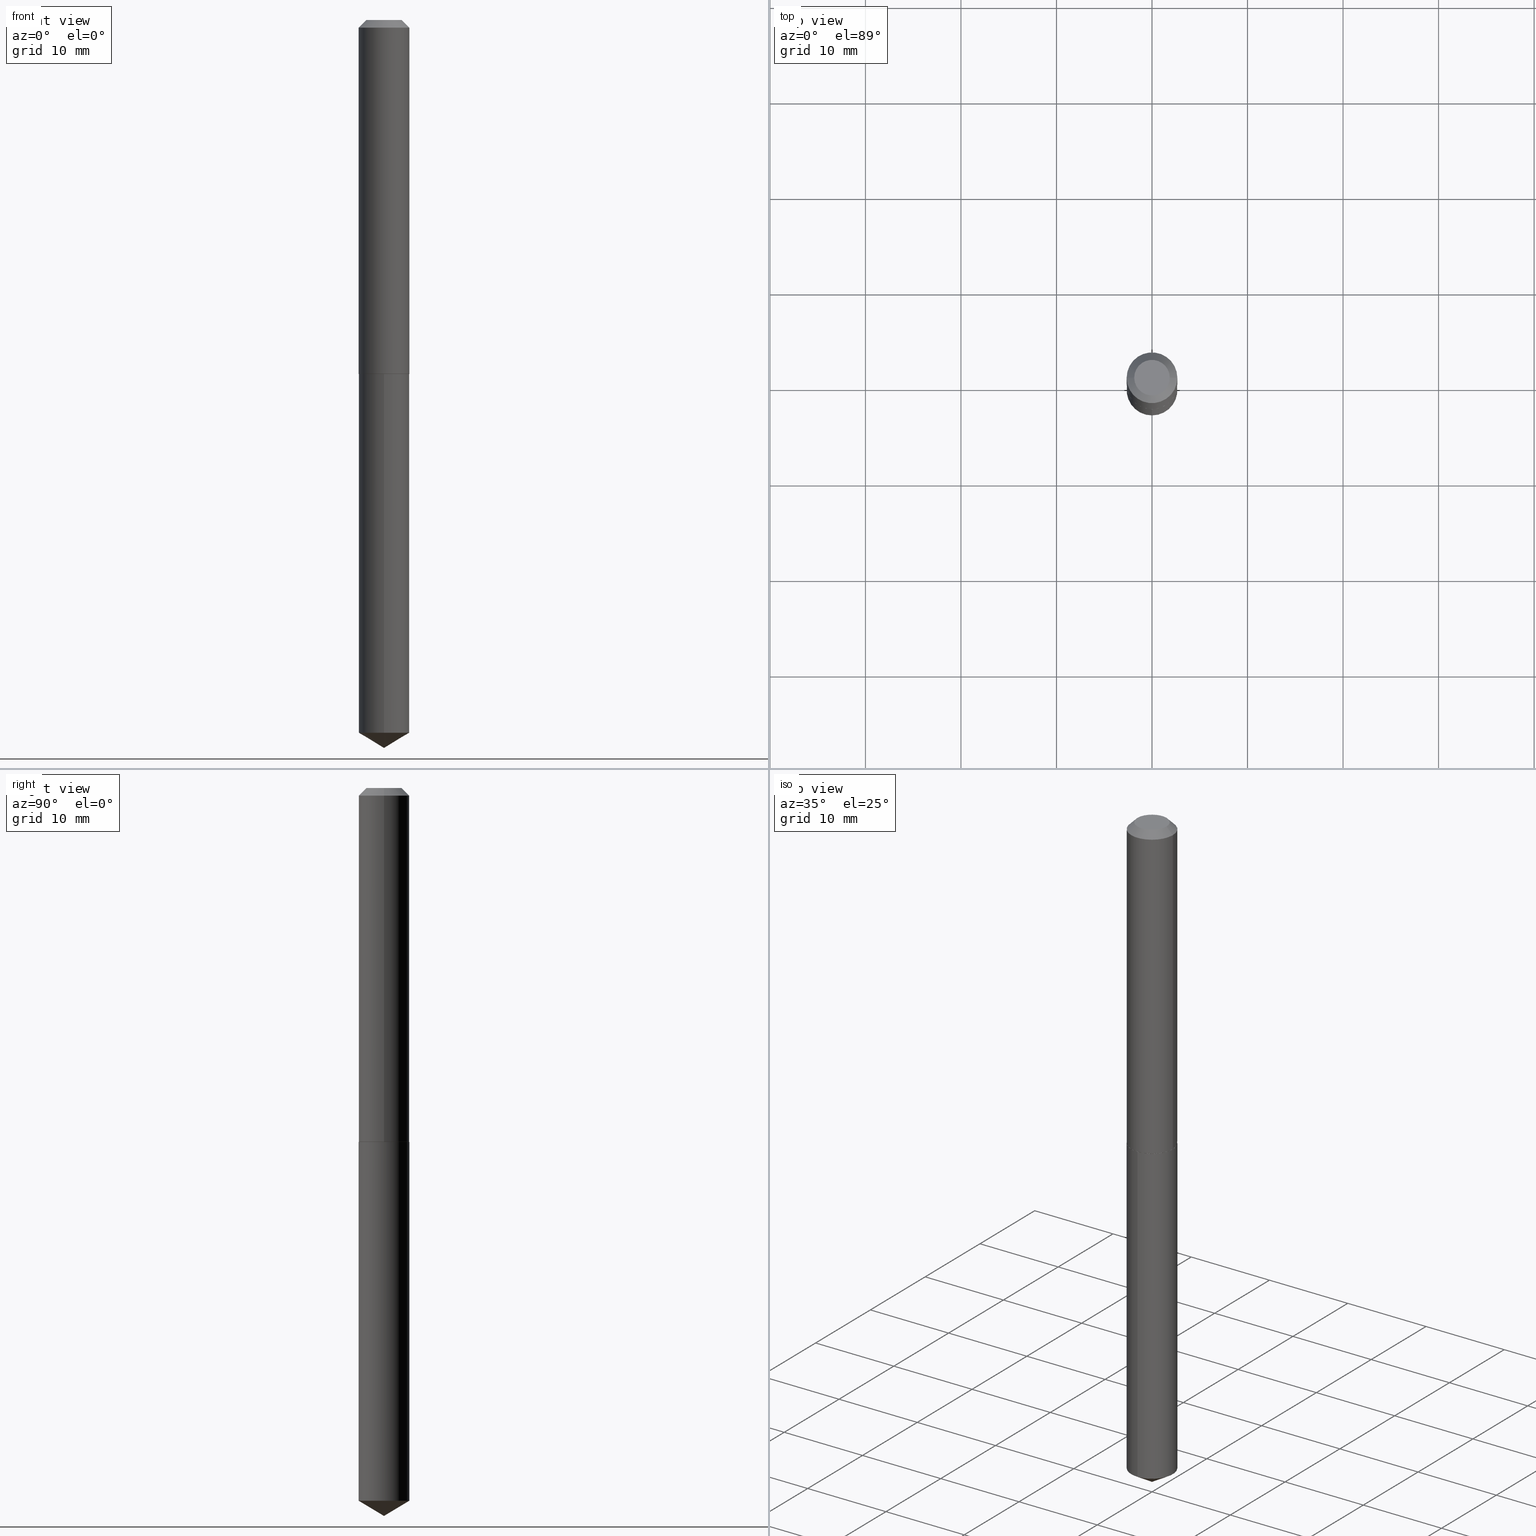
[diagram: canonical four-view strip — front | top / right | iso, engineering-drawing reading convention]
A machine part, canonical four-view strip (front | top / right | iso — engineering-drawing reading convention). The complete STEP part file that produces these views, byte-faithful:
ISO-10303-21;
HEADER;
FILE_DESCRIPTION (( 'STEP AP203' ),
    '1' );
FILE_NAME ('51004.STEP',
    '2024-04-22T18:11:56',
    ( '' ),
    ( '' ),
    'SwSTEP 2.0',
    'SolidWorks 2023',
    '' );
FILE_SCHEMA (( 'CONFIG_CONTROL_DESIGN' ));
ENDSEC;

DATA;
#1 = CARTESIAN_POINT ( 'NONE',  ( 3.567938988224114792E-29, -5.094071273372150151E-15, -1.459000000000000297 ) ) ;
#2 = PERSON_AND_ORGANIZATION_ROLE ( 'creator' ) ;
#3 = ORIENTED_EDGE ( 'NONE', *, *, #196, .F. ) ;
#4 = CARTESIAN_POINT ( 'NONE',  ( 7.642090019328598283E-31, -1.091087918388489651E-16, -0.03125000000000019429 ) ) ;
#5 = AXIS2_PLACEMENT_3D ( 'NONE', #40, #342, #97 ) ;
#6 = EDGE_CURVE ( 'NONE', #179, #195, #211, .T. ) ;
#7 = DIRECTION ( 'NONE',  ( -2.445468806185136597E-29, 3.491481338843145583E-15, 1.000000000000000000 ) ) ;
#8 = LENGTH_MEASURE_WITH_UNIT ( LENGTH_MEASURE( 0.02539999999999999897 ), #284 );
#9 = ORIENTED_EDGE ( 'NONE', *, *, #300, .F. ) ;
#10 = DIRECTION ( 'NONE',  ( -1.000000000000000000, 6.982962677686266711E-15, 0.000000000000000000 ) ) ;
#11 = DIRECTION ( 'NONE',  ( 0.000000000000000000, 0.000000000000000000, 1.000000000000000000 ) ) ;
#12 = VECTOR ( 'NONE', #35, 39.37007874015748143 ) ;
#13 = ORIENTED_EDGE ( 'NONE', *, *, #194, .T. ) ;
#14 = EDGE_LOOP ( 'NONE', ( #206, #106, #159, #32 ) ) ;
#15 = CALENDAR_DATE ( 2024, 22, 4 ) ;
#16 = ORGANIZATION ( 'UNSPECIFIED', 'UNSPECIFIED', '' ) ;
#17 = CARTESIAN_POINT ( 'NONE',  ( 3.567938988224114792E-29, -5.094071273372150151E-15, -1.459000000000000297 ) ) ;
#18 = ADVANCED_FACE ( 'NONE', ( #81 ), #163, .T. ) ;
#19 = DIRECTION ( 'NONE',  ( -2.441776610814590740E-29, 3.496768772760477182E-15, 1.000000000000000000 ) ) ;
#20 = ORIENTED_EDGE ( 'NONE', *, *, #6, .F. ) ;
#21 = CIRCLE ( 'NONE', #311, 0.1045000000000001622 ) ;
#22 = DIRECTION ( 'NONE',  ( -2.438088387897960049E-29, 3.491481338843145188E-15, 1.000000000000000000 ) ) ;
#23 = EDGE_CURVE ( 'NONE', #129, #108, #118, .T. ) ;
#24 = DIRECTION ( 'NONE',  ( -5.985567269335967312E-15, -0.8571673007021139989, 0.5150380749100511579 ) ) ;
#25 = PERSON_AND_ORGANIZATION_ROLE ( 'creator' ) ;
#26 = DIRECTION ( 'NONE',  ( -2.445468806185136877E-29, 3.491481338843145188E-15, 1.000000000000000000 ) ) ;
#27 = DIRECTION ( 'NONE',  ( 0.7071067811864147901, -2.468850131080866299E-15, 0.7071067811866802444 ) ) ;
#28 = VECTOR ( 'NONE', #184, 39.37007874015748143 ) ;
#29 = CARTESIAN_POINT ( 'NONE',  ( 7.325329832443772782E-29, -1.049030631828143155E-14, -3.000000000000000444 ) ) ;
#30 = ADVANCED_FACE ( 'NONE', ( #268 ), #87, .F. ) ;
#31 = DIRECTION ( 'NONE',  ( -2.445468806185136597E-29, 3.491481338843145583E-15, 1.000000000000000000 ) ) ;
#32 = ORIENTED_EDGE ( 'NONE', *, *, #34, .F. ) ;
#33 = CARTESIAN_POINT ( 'NONE',  ( 0.1045000000000000789, -7.297195998182153130E-16, 5.095604730706756323E-30 ) ) ;
#34 = EDGE_CURVE ( 'NONE', #228, #256, #178, .T. ) ;
#35 = DIRECTION ( 'NONE',  ( 0.7071067811865453523, -7.319954787623248157E-15, -0.7071067811865496822 ) ) ;
#36 = DIRECTION ( 'NONE',  ( -2.445468806185136597E-29, 3.491481338843145583E-15, 1.000000000000000000 ) ) ;
#37 = AXIS2_PLACEMENT_3D ( 'NONE', #17, #116, #85 ) ;
#38 = DIRECTION ( 'NONE',  ( -6.982962677686264344E-15, -1.000000000000000000, 3.468864327941540177E-15 ) ) ;
#39 = VERTEX_POINT ( 'NONE', #78 ) ;
#40 = CARTESIAN_POINT ( 'NONE',  ( 7.177397751572739020E-29, -1.026303006933405214E-14, -2.937210065311621321 ) ) ;
#41 = ADVANCED_FACE ( 'NONE', ( #361 ), #333, .T. ) ;
#42 = ORIENTED_EDGE ( 'NONE', *, *, #119, .T. ) ;
#43 = DIRECTION ( 'NONE',  ( 1.000000000000000000, 0.000000000000000000, 0.000000000000000000 ) ) ;
#44 = AXIS2_PLACEMENT_3D ( 'NONE', #200, #242, #366 ) ;
#45 = DATE_AND_TIME ( #15, #328 ) ;
#46 = ORIENTED_EDGE ( 'NONE', *, *, #317, .F. ) ;
#47 = APPROVAL_DATE_TIME ( #271, #269 ) ;
#48 = EDGE_LOOP ( 'NONE', ( #3, #293, #313, #46 ) ) ;
#49 = APPROVAL_PERSON_ORGANIZATION ( #235, #269, #267 ) ;
#50 = ORIENTED_EDGE ( 'NONE', *, *, #123, .F. ) ;
#51 = ADVANCED_FACE ( 'NONE', ( #332 ), #324, .F. ) ;
#52 = EDGE_LOOP ( 'NONE', ( #296, #384, #42, #142 ) ) ;
#53 = COORDINATED_UNIVERSAL_TIME_OFFSET ( 5, 0, .BEHIND. ) ;
#54 = LINE ( 'NONE', #29, #144 ) ;
#55 = FACE_OUTER_BOUND ( 'NONE', #14, .T. ) ;
#56 = ORIENTED_EDGE ( 'NONE', *, *, #277, .F. ) ;
#57 = LINE ( 'NONE', #336, #212 ) ;
#58 = EDGE_LOOP ( 'NONE', ( #288, #379 ) ) ;
#59 = CARTESIAN_POINT ( 'NONE',  ( -8.880222068815590647E-28, 1.271854699675077977E-13, 36.37007874015748143 ) ) ;
#60 = EDGE_CURVE ( 'NONE', #256, #228, #218, .T. ) ;
#61 = LINE ( 'NONE', #149, #28 ) ;
#62 = AXIS2_PLACEMENT_3D ( 'NONE', #170, #359, #386 ) ;
#63 = AXIS2_PLACEMENT_3D ( 'NONE', #274, #19, #223 ) ;
#64 = CARTESIAN_POINT ( 'NONE',  ( -0.1045000000000001622, -4.349808373833422899E-15, -1.458500000000000352 ) ) ;
#65 = DIRECTION ( 'NONE',  ( 1.000000000000000000, -6.982962677686265922E-15, 4.876176775795935232E-29 ) ) ;
#66 = EDGE_CURVE ( 'NONE', #108, #39, #245, .T. ) ;
#67 = CARTESIAN_POINT ( 'NONE',  ( 7.325329832443772782E-29, -1.049030631828143155E-14, -3.000000000000000444 ) ) ;
#68 = VECTOR ( 'NONE', #26, 39.37007874015748143 ) ;
#69 = PRODUCT_DEFINITION_FORMATION_WITH_SPECIFIED_SOURCE ( 'ANY', '', #146, .NOT_KNOWN. ) ;
#70 = ORIENTED_EDGE ( 'NONE', *, *, #100, .F. ) ;
#71 = PERSON_AND_ORGANIZATION ( #373, #16 ) ;
#72 = ADVANCED_FACE ( 'NONE', ( #148 ), #89, .T. ) ;
#73 = COORDINATED_UNIVERSAL_TIME_OFFSET ( 5, 0, .BEHIND. ) ;
#74 = EDGE_LOOP ( 'NONE', ( #303, #20, #103, #321 ) ) ;
#75 = AXIS2_PLACEMENT_3D ( 'NONE', #306, #257, #93 ) ;
#76 = CC_DESIGN_PERSON_AND_ORGANIZATION_ASSIGNMENT ( #330, #2, ( #69 ) ) ;
#77 = DATE_TIME_ROLE ( 'classification_date' ) ;
#78 = CARTESIAN_POINT ( 'NONE',  ( 0.1045000000000001622, -5.822045132520943960E-15, -1.458500000000000352 ) ) ;
#79 = VECTOR ( 'NONE', #188, 39.37007874015748143 ) ;
#80 = SECURITY_CLASSIFICATION ( '', '', #197 ) ;
#81 = FACE_OUTER_BOUND ( 'NONE', #48, .T. ) ;
#82 = DIRECTION ( 'NONE',  ( 1.000000000000000000, -6.982962677686261977E-15, 0.000000000000000000 ) ) ;
#83 = CC_DESIGN_PERSON_AND_ORGANIZATION_ASSIGNMENT ( #71, #260, ( #146 ) ) ;
#84 = DIRECTION ( 'NONE',  ( -2.441776610814590740E-29, 3.496768772760476787E-15, 1.000000000000000000 ) ) ;
#85 = DIRECTION ( 'NONE',  ( -6.982962677686266711E-15, -1.000000000000000000, 2.614208606377285850E-15 ) ) ;
#86 = DIRECTION ( 'NONE',  ( -2.445468806185136597E-29, 3.491481338843145583E-15, 1.000000000000000000 ) ) ;
#87 = PLANE ( 'NONE',  #234 ) ;
#88 = DIRECTION ( 'NONE',  ( -2.445468806185136597E-29, 3.491481338843145583E-15, 1.000000000000000000 ) ) ;
#89 = CONICAL_SURFACE ( 'NONE', #63, 65.52281426576945478, 1.029744258676661417 ) ;
#90 = FACE_OUTER_BOUND ( 'NONE', #95, .T. ) ;
#91 = DESIGN_CONTEXT ( 'detailed design', #343, 'design' ) ;
#92 = DIRECTION ( 'NONE',  ( -6.982962677686266711E-15, -1.000000000000000000, 5.228417212754571700E-15 ) ) ;
#93 = DIRECTION ( 'NONE',  ( 1.000000000000000000, -6.982962677686261977E-15, 0.000000000000000000 ) ) ;
#94 = APPLICATION_CONTEXT ( 'configuration controlled 3d designs of mechanical parts and assemblies' ) ;
#95 = EDGE_LOOP ( 'NONE', ( #168, #285, #383 ) ) ;
#96 = DIRECTION ( 'NONE',  ( -2.441776610814590740E-29, 3.496768772760477182E-15, 1.000000000000000000 ) ) ;
#97 = DIRECTION ( 'NONE',  ( -6.982962677686266711E-15, -1.000000000000000000, 5.228417212754571700E-15 ) ) ;
#98 = EDGE_LOOP ( 'NONE', ( #135, #329, #161, #70 ) ) ;
#99 = CC_DESIGN_APPROVAL ( #191, ( #80 ) ) ;
#100 = EDGE_CURVE ( 'NONE', #179, #262, #344, .T. ) ;
#101 = ORIENTED_EDGE ( 'NONE', *, *, #290, .T. ) ;
#102 = PERSON_AND_ORGANIZATION ( #373, #16 ) ;
#103 = ORIENTED_EDGE ( 'NONE', *, *, #100, .T. ) ;
#104 = ORIENTED_EDGE ( 'NONE', *, *, #314, .F. ) ;
#105 = AXIS2_PLACEMENT_3D ( 'NONE', #241, #213, #272 ) ;
#106 = ORIENTED_EDGE ( 'NONE', *, *, #314, .T. ) ;
#107 = EDGE_LOOP ( 'NONE', ( #236, #318 ) ) ;
#108 = VERTEX_POINT ( 'NONE', #208 ) ;
#109 = CC_DESIGN_PERSON_AND_ORGANIZATION_ASSIGNMENT ( #232, #25, ( #244 ) ) ;
#110 = AXIS2_PLACEMENT_3D ( 'NONE', #59, #96, #38 ) ;
#111 = ORIENTED_EDGE ( 'NONE', *, *, #60, .F. ) ;
#112 = CALENDAR_DATE ( 2024, 22, 4 ) ;
#113 = DIRECTION ( 'NONE',  ( -6.982962677686266711E-15, -1.000000000000000000, 2.614208606377285850E-15 ) ) ;
#114 = PERSON_AND_ORGANIZATION_ROLE ( 'classification_officer' ) ;
#115 = DIRECTION ( 'NONE',  ( 1.000000000000000000, -6.982962677686265922E-15, 4.876176775795935232E-29 ) ) ;
#116 = DIRECTION ( 'NONE',  ( -2.441776610814590740E-29, 3.496768772760477182E-15, 1.000000000000000000 ) ) ;
#117 = CARTESIAN_POINT ( 'NONE',  ( -0.07324999999999998179, 5.660564120599423523E-16, -2.449293598332392884E-19 ) ) ;
#118 = CIRCLE ( 'NONE', #340, 0.1040000000000001756 ) ;
#119 = EDGE_CURVE ( 'NONE', #39, #220, #308, .T. ) ;
#120 = CIRCLE ( 'NONE', #75, 0.1045000000000001622 ) ;
#121 = AXIS2_PLACEMENT_3D ( 'NONE', #377, #11, #43 ) ;
#122 = CYLINDRICAL_SURFACE ( 'NONE', #105, 0.1044999999999999818 ) ;
#123 = EDGE_CURVE ( 'NONE', #136, #256, #57, .T. ) ;
#124 = APPROVAL_DATE_TIME ( #334, #191 ) ;
#125 = PRODUCT_RELATED_PRODUCT_CATEGORY ( 'detail', '', ( #146 ) ) ;
#126 = DIRECTION ( 'NONE',  ( 2.445468806185136597E-29, -3.491481338843145583E-15, -1.000000000000000000 ) ) ;
#127 = CONICAL_SURFACE ( 'NONE', #352, 0.1044999999999999818, 0.7853981633974452814 ) ;
#128 = DIRECTION ( 'NONE',  ( 6.090539988449805257E-15, 0.8571673007021175517, 0.5150380749100452737 ) ) ;
#129 = VERTEX_POINT ( 'NONE', #155 ) ;
#130 = CARTESIAN_POINT ( 'NONE',  ( 7.425171588693764498E-16, 0.1044999999999897400, -2.937210065311621765 ) ) ;
#131 = EDGE_CURVE ( 'NONE', #108, #129, #389, .T. ) ;
#132 = EDGE_LOOP ( 'NONE', ( #9, #348, #104 ) ) ;
#133 = MECHANICAL_CONTEXT ( 'NONE', #94, 'mechanical' ) ;
#134 = CIRCLE ( 'NONE', #250, 0.1044999999999999818 ) ;
#135 = ORIENTED_EDGE ( 'NONE', *, *, #194, .F. ) ;
#136 = VERTEX_POINT ( 'NONE', #177 ) ;
#137 = CONICAL_SURFACE ( 'NONE', #110, 65.52281426576945478, 1.029744258676661417 ) ;
#138 = APPROVAL_PERSON_ORGANIZATION ( #141, #191, #325 ) ;
#139 = APPROVAL_DATE_TIME ( #45, #280 ) ;
#140 = CARTESIAN_POINT ( 'NONE',  ( 8.917412213501928532E-30, -8.926538795253070044E-15, -1.459000000000000519 ) ) ;
#141 = PERSON_AND_ORGANIZATION ( #373, #16 ) ;
#142 = ORIENTED_EDGE ( 'NONE', *, *, #341, .F. ) ;
#143 = EDGE_LOOP ( 'NONE', ( #266, #101, #56, #233 ) ) ;
#144 = VECTOR ( 'NONE', #24, 39.37007874015748854 ) ;
#145 = DIRECTION ( 'NONE',  ( -2.445468806185136597E-29, 3.491481338843145583E-15, 1.000000000000000000 ) ) ;
#146 = PRODUCT ( '51004', '51004', '', ( #133 ) ) ;
#147 = LINE ( 'NONE', #187, #12 ) ;
#148 = FACE_OUTER_BOUND ( 'NONE', #132, .T. ) ;
#149 = CARTESIAN_POINT ( 'NONE',  ( -0.1045000000000001622, -4.349808373833422899E-15, -1.458500000000000352 ) ) ;
#150 = EDGE_CURVE ( 'NONE', #195, #220, #147, .T. ) ;
#151 = DIRECTION ( 'NONE',  ( -2.445468806185136597E-29, 3.491481338843145583E-15, 1.000000000000000000 ) ) ;
#152 = ADVANCED_FACE ( 'NONE', ( #55 ), #122, .T. ) ;
#153 = CARTESIAN_POINT ( 'NONE',  ( 7.425171588693401622E-16, 0.1044999999999949025, -1.459000000000000519 ) ) ;
#154 = PRODUCT_DEFINITION_SHAPE ( 'NONE', 'NONE',  #244 ) ;
#155 = CARTESIAN_POINT ( 'NONE',  ( -0.1040000000000001756, -4.352457601007534889E-15, -1.459000000000000519 ) ) ;
#156 = DIRECTION ( 'NONE',  ( 1.000000000000000000, -6.982962677686266711E-15, 0.000000000000000000 ) ) ;
#157 = CIRCLE ( 'NONE', #5, 0.1044999999999999818 ) ;
#158 = FACE_OUTER_BOUND ( 'NONE', #74, .T. ) ;
#159 = ORIENTED_EDGE ( 'NONE', *, *, #123, .T. ) ;
#160 = DIRECTION ( 'NONE',  ( 1.000000000000000000, -6.982962677686261977E-15, 0.000000000000000000 ) ) ;
#161 = ORIENTED_EDGE ( 'NONE', *, *, #277, .T. ) ;
#162 =( CONVERSION_BASED_UNIT ( 'INCH', #8 ) LENGTH_UNIT ( ) NAMED_UNIT ( #353 ) );
#163 = CONICAL_SURFACE ( 'NONE', #388, 0.1045000000000001622, 0.7853981633972606513 ) ;
#164 = EDGE_LOOP ( 'NONE', ( #299, #13 ) ) ;
#165 = COORDINATED_UNIVERSAL_TIME_OFFSET ( 5, 0, .BEHIND. ) ;
#166 = VECTOR ( 'NONE', #363, 39.37007874015748143 ) ;
#167 = ADVANCED_FACE ( 'NONE', ( #251 ), #243, .F. ) ;
#168 = ORIENTED_EDGE ( 'NONE', *, *, #216, .F. ) ;
#169 = PERSON_AND_ORGANIZATION_ROLE ( 'design_supplier' ) ;
#170 = CARTESIAN_POINT ( 'NONE',  ( 5.989671091818676413E-48, -8.551662891793981134E-34, -2.449293598294715917E-19 ) ) ;
#171 = COORDINATED_UNIVERSAL_TIME_OFFSET ( 5, 0, .BEHIND. ) ;
#172 = CC_DESIGN_SECURITY_CLASSIFICATION ( #80, ( #69 ) ) ;
#173 = DIRECTION ( 'NONE',  ( -2.441776610814590740E-29, 3.496768772760477182E-15, 1.000000000000000000 ) ) ;
#174 = ADVANCED_FACE ( 'NONE', ( #304 ), #369, .T. ) ;
#175 = DIRECTION ( 'NONE',  ( 1.000000000000000000, -6.982962677686265133E-15, 0.000000000000000000 ) ) ;
#176 = DIRECTION ( 'NONE',  ( 1.000000000000000000, -6.982962677686261977E-15, 0.000000000000000000 ) ) ;
#177 = CARTESIAN_POINT ( 'NONE',  ( -7.297195998181429350E-16, -0.1045000000000102514, -2.937210065311620433 ) ) ;
#178 = CIRCLE ( 'NONE', #44, 0.1044999999999999818 ) ;
#179 = VERTEX_POINT ( 'NONE', #117 ) ;
#180 = DIRECTION ( 'NONE',  ( 6.982962677686265922E-15, 1.000000000000000000, -3.496768772760476787E-15 ) ) ;
#181 = DATE_TIME_ROLE ( 'creation_date' ) ;
#182 = SHAPE_DEFINITION_REPRESENTATION ( #154, #183 ) ;
#183 = ADVANCED_BREP_SHAPE_REPRESENTATION ( '51004', ( #190, #323, #121 ), #382 ) ;
#184 = DIRECTION ( 'NONE',  ( -0.7071067811864147901, 7.493145998869874533E-15, 0.7071067811866802444 ) ) ;
#185 = CLOSED_SHELL ( 'NONE', ( #247, #174, #230, #51, #18, #294, #331, #30 ) ) ;
#186 = AXIS2_PLACEMENT_3D ( 'NONE', #140, #22, #270 ) ;
#187 = CARTESIAN_POINT ( 'NONE',  ( 0.1044999999999999818, -8.260308326059739785E-16, -0.03125000000000019429 ) ) ;
#188 = DIRECTION ( 'NONE',  ( -2.445468806185136877E-29, 3.491481338843145188E-15, 1.000000000000000000 ) ) ;
#189 = LOCAL_TIME ( 14, 11, 56.00000000000000000, #171 ) ;
#190 = MANIFOLD_SOLID_BREP ( 'Body-Move/Copy2[1]', #239 ) ;
#191 = APPROVAL ( #199, 'UNSPECIFIED' ) ;
#192 = ORIENTED_EDGE ( 'NONE', *, *, #322, .T. ) ;
#193 = APPLICATION_PROTOCOL_DEFINITION ( 'international standard', 'config_control_design', 1994, #343 ) ;
#194 = EDGE_CURVE ( 'NONE', #195, #179, #381, .T. ) ;
#195 = VERTEX_POINT ( 'NONE', #246 ) ;
#196 = EDGE_CURVE ( 'NONE', #129, #292, #61, .T. ) ;
#197 = SECURITY_CLASSIFICATION_LEVEL ( 'unclassified' ) ;
#198 = CARTESIAN_POINT ( 'NONE',  ( 2.994835545909338206E-48, -4.275831445896990567E-34, -1.224646799147357958E-19 ) ) ;
#199 = APPROVAL_STATUS ( 'not_yet_approved' ) ;
#200 = CARTESIAN_POINT ( 'NONE',  ( 3.567938988224114792E-29, -5.094071273372150151E-15, -1.459000000000000297 ) ) ;
#201 = CALENDAR_DATE ( 2024, 22, 4 ) ;
#202 = VECTOR ( 'NONE', #27, 39.37007874015748143 ) ;
#203 = DIRECTION ( 'NONE',  ( -2.445468806185136597E-29, 3.491481338843145583E-15, 1.000000000000000000 ) ) ;
#204 = COORDINATED_UNIVERSAL_TIME_OFFSET ( 5, 0, .BEHIND. ) ;
#205 = CARTESIAN_POINT ( 'NONE',  ( -7.297195998181791240E-16, -0.1045000000000050749, -1.458999999999999853 ) ) ;
#206 = ORIENTED_EDGE ( 'NONE', *, *, #370, .F. ) ;
#207 = CARTESIAN_POINT ( 'NONE',  ( 0.1044999999999999818, -8.388283916570637234E-16, -0.03125000000000019429 ) ) ;
#208 = CARTESIAN_POINT ( 'NONE',  ( 0.1040000000000001756, -5.820299391851524035E-15, -1.459000000000000519 ) ) ;
#209 = CARTESIAN_POINT ( 'NONE',  ( 0.1045000000000001622, -5.822045132520943960E-15, -1.458500000000000352 ) ) ;
#210 = FACE_OUTER_BOUND ( 'NONE', #98, .T. ) ;
#211 = CIRCLE ( 'NONE', #62, 0.07324999999999998179 ) ;
#212 = VECTOR ( 'NONE', #84, 39.37007874015748143 ) ;
#213 = DIRECTION ( 'NONE',  ( -2.441776610814590740E-29, 3.496768772760477182E-15, 1.000000000000000000 ) ) ;
#214 = CC_DESIGN_DATE_AND_TIME_ASSIGNMENT ( #356, #77, ( #80 ) ) ;
#215 = CARTESIAN_POINT ( 'NONE',  ( 0.000000000000000000, 0.000000000000000000, 0.000000000000000000 ) ) ;
#216 = EDGE_CURVE ( 'NONE', #354, #136, #54, .T. ) ;
#217 = CARTESIAN_POINT ( 'NONE',  ( 0.000000000000000000, 0.000000000000000000, 0.000000000000000000 ) ) ;
#218 = CIRCLE ( 'NONE', #305, 0.1044999999999999818 ) ;
#219 = CARTESIAN_POINT ( 'NONE',  ( 7.336198132272364143E-29, -1.047487758611065775E-14, -3.000000000000000444 ) ) ;
#220 = VERTEX_POINT ( 'NONE', #207 ) ;
#221 = CARTESIAN_POINT ( 'NONE',  ( -0.1044999999999999818, 6.206108079793658179E-16, -0.03125000000000019429 ) ) ;
#222 = CARTESIAN_POINT ( 'NONE',  ( 3.566716253821021991E-29, -5.092325532702728647E-15, -1.458500000000000352 ) ) ;
#223 = DIRECTION ( 'NONE',  ( -6.982962677686264344E-15, -1.000000000000000000, 3.468864327941540177E-15 ) ) ;
#224 = DIRECTION ( 'NONE',  ( -2.445468806185136597E-29, 3.491481338843145583E-15, 1.000000000000000000 ) ) ;
#225 = VECTOR ( 'NONE', #279, 39.37007874015748143 ) ;
#226 = APPROVAL_PERSON_ORGANIZATION ( #102, #280, #351 ) ;
#227 = CARTESIAN_POINT ( 'NONE',  ( 7.642090019328598283E-31, -1.091087918388489651E-16, -0.03125000000000019429 ) ) ;
#228 = VERTEX_POINT ( 'NONE', #360 ) ;
#229 = APPROVAL_STATUS ( 'not_yet_approved' ) ;
#230 = ADVANCED_FACE ( 'NONE', ( #275 ), #276, .T. ) ;
#231 = ORIENTED_EDGE ( 'NONE', *, *, #370, .T. ) ;
#232 = PERSON_AND_ORGANIZATION ( #373, #16 ) ;
#233 = ORIENTED_EDGE ( 'NONE', *, *, #119, .F. ) ;
#234 = AXIS2_PLACEMENT_3D ( 'NONE', #198, #301, #390 ) ;
#235 = PERSON_AND_ORGANIZATION ( #373, #16 ) ;
#236 = ORIENTED_EDGE ( 'NONE', *, *, #60, .T. ) ;
#237 = PERSON_AND_ORGANIZATION ( #373, #16 ) ;
#238 = ORIENTED_EDGE ( 'NONE', *, *, #196, .T. ) ;
#239 = CLOSED_SHELL ( 'NONE', ( #41, #261, #72, #152, #167 ) ) ;
#240 = AXIS2_PLACEMENT_3D ( 'NONE', #217, #36, #65 ) ;
#241 = CARTESIAN_POINT ( 'NONE',  ( 3.567938988224114792E-29, -5.094071273372150151E-15, -1.459000000000000297 ) ) ;
#242 = DIRECTION ( 'NONE',  ( -2.441776610814590740E-29, 3.496768772760477182E-15, 1.000000000000000000 ) ) ;
#243 = PLANE ( 'NONE',  #264 ) ;
#244 = PRODUCT_DEFINITION ( 'UNKNOWN', '', #69, #91 ) ;
#245 = LINE ( 'NONE', #209, #202 ) ;
#246 = CARTESIAN_POINT ( 'NONE',  ( 0.07324999999999998179, -6.642811554713692475E-16, -2.449293598253609831E-19 ) ) ;
#247 = ADVANCED_FACE ( 'NONE', ( #210 ), #374, .T. ) ;
#248 = ORIENTED_EDGE ( 'NONE', *, *, #66, .F. ) ;
#249 = DIRECTION ( 'NONE',  ( -1.000000000000000000, 6.982962677686266711E-15, 0.000000000000000000 ) ) ;
#250 = AXIS2_PLACEMENT_3D ( 'NONE', #349, #345, #92 ) ;
#251 = FACE_OUTER_BOUND ( 'NONE', #107, .T. ) ;
#252 =( NAMED_UNIT ( * ) SI_UNIT ( $, .STERADIAN. ) SOLID_ANGLE_UNIT ( ) );
#253 = UNCERTAINTY_MEASURE_WITH_UNIT (LENGTH_MEASURE( 1.000000000000000082E-05 ), #162, 'distance_accuracy_value', 'NONE');
#254 = VECTOR ( 'NONE', #128, 39.37007874015748143 ) ;
#255 = DIRECTION ( 'NONE',  ( -2.445468806185136597E-29, 3.491481338843145583E-15, 1.000000000000000000 ) ) ;
#256 = VERTEX_POINT ( 'NONE', #205 ) ;
#257 = DIRECTION ( 'NONE',  ( -2.445468806185136597E-29, 3.491481338843145583E-15, 1.000000000000000000 ) ) ;
#258 = AXIS2_PLACEMENT_3D ( 'NONE', #365, #151, #82 ) ;
#259 = CC_DESIGN_APPROVAL ( #280, ( #244 ) ) ;
#260 = PERSON_AND_ORGANIZATION_ROLE ( 'design_owner' ) ;
#261 = ADVANCED_FACE ( 'NONE', ( #90 ), #137, .T. ) ;
#262 = VERTEX_POINT ( 'NONE', #282 ) ;
#263 = DATE_AND_TIME ( #273, #347 ) ;
#264 = AXIS2_PLACEMENT_3D ( 'NONE', #368, #337, #180 ) ;
#265 = CC_DESIGN_PERSON_AND_ORGANIZATION_ASSIGNMENT ( #298, #169, ( #69 ) ) ;
#266 = ORIENTED_EDGE ( 'NONE', *, *, #283, .T. ) ;
#267 = APPROVAL_ROLE ( '' ) ;
#268 = FACE_OUTER_BOUND ( 'NONE', #164, .T. ) ;
#269 = APPROVAL ( #302, 'UNSPECIFIED' ) ;
#270 = DIRECTION ( 'NONE',  ( 1.000000000000000000, -6.982962677686265922E-15, 4.876176775795935793E-29 ) ) ;
#271 = DATE_AND_TIME ( #112, #312 ) ;
#272 = DIRECTION ( 'NONE',  ( -6.982962677686266711E-15, -1.000000000000000000, 2.614208606377285850E-15 ) ) ;
#273 = CALENDAR_DATE ( 2024, 22, 4 ) ;
#274 = CARTESIAN_POINT ( 'NONE',  ( -8.880222068815590647E-28, 1.271854699675077977E-13, 36.37007874015748143 ) ) ;
#275 = FACE_OUTER_BOUND ( 'NONE', #350, .T. ) ;
#276 = CONICAL_SURFACE ( 'NONE', #258, 0.1045000000000001622, 0.7853981633972606513 ) ;
#277 = EDGE_CURVE ( 'NONE', #220, #262, #326, .T. ) ;
#278 = CC_DESIGN_APPROVAL ( #269, ( #69 ) ) ;
#279 = DIRECTION ( 'NONE',  ( -2.441776610814590740E-29, 3.496768772760476787E-15, 1.000000000000000000 ) ) ;
#280 = APPROVAL ( #229, 'UNSPECIFIED' ) ;
#281 = CARTESIAN_POINT ( 'NONE',  ( 3.567938988224115913E-29, -5.094071273372150940E-15, -1.459000000000000519 ) ) ;
#282 = CARTESIAN_POINT ( 'NONE',  ( -0.1044999999999999818, -1.858200003401482731E-15, -0.03125000000000019429 ) ) ;
#283 = EDGE_CURVE ( 'NONE', #39, #292, #21, .T. ) ;
#284 =( LENGTH_UNIT ( ) NAMED_UNIT ( * ) SI_UNIT ( $, .METRE. ) );
#285 = ORIENTED_EDGE ( 'NONE', *, *, #300, .T. ) ;
#286 = FACE_OUTER_BOUND ( 'NONE', #52, .T. ) ;
#287 = CC_DESIGN_DATE_AND_TIME_ASSIGNMENT ( #263, #181, ( #244 ) ) ;
#288 = ORIENTED_EDGE ( 'NONE', *, *, #131, .F. ) ;
#289 =( NAMED_UNIT ( * ) PLANE_ANGLE_UNIT ( ) SI_UNIT ( $, .RADIAN. ) );
#290 = EDGE_CURVE ( 'NONE', #292, #262, #372, .T. ) ;
#291 = AXIS2_PLACEMENT_3D ( 'NONE', #215, #88, #115 ) ;
#292 = VERTEX_POINT ( 'NONE', #64 ) ;
#293 = ORIENTED_EDGE ( 'NONE', *, *, #23, .T. ) ;
#294 = ADVANCED_FACE ( 'NONE', ( #286 ), #316, .T. ) ;
#295 = AXIS2_PLACEMENT_3D ( 'NONE', #362, #86, #338 ) ;
#296 = ORIENTED_EDGE ( 'NONE', *, *, #290, .F. ) ;
#297 = LOCAL_TIME ( 14, 11, 56.00000000000000000, #53 ) ;
#298 = PERSON_AND_ORGANIZATION ( #373, #16 ) ;
#299 = ORIENTED_EDGE ( 'NONE', *, *, #6, .T. ) ;
#300 = EDGE_CURVE ( 'NONE', #354, #387, #339, .T. ) ;
#301 = DIRECTION ( 'NONE',  ( 2.438088387897960049E-29, -3.491481338843145188E-15, -1.000000000000000000 ) ) ;
#302 = APPROVAL_STATUS ( 'not_yet_approved' ) ;
#303 = ORIENTED_EDGE ( 'NONE', *, *, #150, .F. ) ;
#304 = FACE_OUTER_BOUND ( 'NONE', #143, .T. ) ;
#305 = AXIS2_PLACEMENT_3D ( 'NONE', #1, #173, #113 ) ;
#306 = CARTESIAN_POINT ( 'NONE',  ( 3.566716253821021991E-29, -5.092325532702728647E-15, -1.458500000000000352 ) ) ;
#307 = CC_DESIGN_PERSON_AND_ORGANIZATION_ASSIGNMENT ( #237, #114, ( #80 ) ) ;
#308 = LINE ( 'NONE', #33, #68 ) ;
#309 = LINE ( 'NONE', #153, #225 ) ;
#310 = CARTESIAN_POINT ( 'NONE',  ( 7.642090019328598283E-31, -1.091087918388489651E-16, -0.03125000000000019429 ) ) ;
#311 = AXIS2_PLACEMENT_3D ( 'NONE', #222, #7, #160 ) ;
#312 = LOCAL_TIME ( 14, 11, 56.00000000000000000, #204 ) ;
#313 = ORIENTED_EDGE ( 'NONE', *, *, #66, .T. ) ;
#314 = EDGE_CURVE ( 'NONE', #387, #136, #134, .T. ) ;
#315 = CARTESIAN_POINT ( 'NONE',  ( 7.642090019328598283E-31, -1.091087918388489651E-16, -0.03125000000000019429 ) ) ;
#316 = CYLINDRICAL_SURFACE ( 'NONE', #240, 0.1045000000000000789 ) ;
#317 = EDGE_CURVE ( 'NONE', #292, #39, #120, .T. ) ;
#318 = ORIENTED_EDGE ( 'NONE', *, *, #34, .T. ) ;
#319 = AXIS2_PLACEMENT_3D ( 'NONE', #4, #335, #249 ) ;
#320 = ORIENTED_EDGE ( 'NONE', *, *, #131, .T. ) ;
#321 = ORIENTED_EDGE ( 'NONE', *, *, #341, .T. ) ;
#322 = EDGE_CURVE ( 'NONE', #136, #387, #157, .T. ) ;
#323 = MANIFOLD_SOLID_BREP ( 'Body-Move/Copy2[2]', #185 ) ;
#324 = PLANE ( 'NONE',  #186 ) ;
#325 = APPROVAL_ROLE ( '' ) ;
#326 = CIRCLE ( 'NONE', #367, 0.1044999999999999818 ) ;
#327 = ORIENTED_EDGE ( 'NONE', *, *, #283, .F. ) ;
#328 = LOCAL_TIME ( 14, 11, 56.00000000000000000, #165 ) ;
#329 = ORIENTED_EDGE ( 'NONE', *, *, #150, .T. ) ;
#330 = PERSON_AND_ORGANIZATION ( #373, #16 ) ;
#331 = ADVANCED_FACE ( 'NONE', ( #158 ), #127, .T. ) ;
#332 = FACE_OUTER_BOUND ( 'NONE', #58, .T. ) ;
#333 = CYLINDRICAL_SURFACE ( 'NONE', #37, 0.1044999999999999818 ) ;
#334 = DATE_AND_TIME ( #201, #189 ) ;
#335 = DIRECTION ( 'NONE',  ( 2.445468806185136597E-29, -3.491481338843145583E-15, -1.000000000000000000 ) ) ;
#336 = CARTESIAN_POINT ( 'NONE',  ( -7.297195998181791240E-16, -0.1045000000000050749, -1.458999999999999853 ) ) ;
#337 = DIRECTION ( 'NONE',  ( 2.441776610814590740E-29, -3.496768772760476787E-15, -1.000000000000000000 ) ) ;
#338 = DIRECTION ( 'NONE',  ( 1.000000000000000000, -6.982962677686267499E-15, 4.876156912890878962E-29 ) ) ;
#339 = LINE ( 'NONE', #219, #254 ) ;
#340 = AXIS2_PLACEMENT_3D ( 'NONE', #364, #145, #175 ) ;
#341 = EDGE_CURVE ( 'NONE', #262, #220, #358, .T. ) ;
#342 = DIRECTION ( 'NONE',  ( -2.441776610814590740E-29, 3.496768772760477182E-15, 1.000000000000000000 ) ) ;
#343 = APPLICATION_CONTEXT ( 'configuration controlled 3d designs of mechanical parts and assemblies' ) ;
#344 = LINE ( 'NONE', #221, #166 ) ;
#345 = DIRECTION ( 'NONE',  ( -2.441776610814590740E-29, 3.496768772760477182E-15, 1.000000000000000000 ) ) ;
#346 = AXIS2_PLACEMENT_3D ( 'NONE', #281, #255, #376 ) ;
#347 = LOCAL_TIME ( 14, 11, 56.00000000000000000, #73 ) ;
#348 = ORIENTED_EDGE ( 'NONE', *, *, #216, .T. ) ;
#349 = CARTESIAN_POINT ( 'NONE',  ( 7.177397751572739020E-29, -1.026303006933405214E-14, -2.937210065311621321 ) ) ;
#350 = EDGE_LOOP ( 'NONE', ( #320, #238, #327, #248 ) ) ;
#351 = APPROVAL_ROLE ( '' ) ;
#352 = AXIS2_PLACEMENT_3D ( 'NONE', #310, #126, #10 ) ;
#353 = DIMENSIONAL_EXPONENTS ( 1.000000000000000000, 0.000000000000000000, 0.000000000000000000, 0.000000000000000000, 0.000000000000000000, 0.000000000000000000, 0.000000000000000000 ) ;
#354 = VERTEX_POINT ( 'NONE', #67 ) ;
#355 = CALENDAR_DATE ( 2024, 22, 4 ) ;
#356 = DATE_AND_TIME ( #355, #297 ) ;
#357 = CARTESIAN_POINT ( 'NONE',  ( 3.566716253821021991E-29, -5.092325532702728647E-15, -1.458500000000000352 ) ) ;
#358 = CIRCLE ( 'NONE', #385, 0.1044999999999999818 ) ;
#359 = DIRECTION ( 'NONE',  ( -2.445468806185136597E-29, 3.491481338843145583E-15, 1.000000000000000000 ) ) ;
#360 = CARTESIAN_POINT ( 'NONE',  ( 7.425171588693765484E-16, 0.1044999999999949025, -1.459000000000000519 ) ) ;
#361 = FACE_OUTER_BOUND ( 'NONE', #375, .T. ) ;
#362 = CARTESIAN_POINT ( 'NONE',  ( 5.989671091818676413E-48, -8.551662891793981134E-34, -2.449293598294715917E-19 ) ) ;
#363 = DIRECTION ( 'NONE',  ( -0.7071067811865453523, 2.468850131082234184E-15, -0.7071067811865496822 ) ) ;
#364 = CARTESIAN_POINT ( 'NONE',  ( 3.567938988224115913E-29, -5.094071273372150940E-15, -1.459000000000000519 ) ) ;
#365 = CARTESIAN_POINT ( 'NONE',  ( 3.566716253821021991E-29, -5.092325532702728647E-15, -1.458500000000000352 ) ) ;
#366 = DIRECTION ( 'NONE',  ( -6.982962677686266711E-15, -1.000000000000000000, 2.614208606377285850E-15 ) ) ;
#367 = AXIS2_PLACEMENT_3D ( 'NONE', #227, #224, #371 ) ;
#368 = CARTESIAN_POINT ( 'NONE',  ( 3.567938988224114792E-29, -5.094071273372150151E-15, -1.459000000000000297 ) ) ;
#369 = CYLINDRICAL_SURFACE ( 'NONE', #291, 0.1045000000000000789 ) ;
#370 = EDGE_CURVE ( 'NONE', #387, #228, #309, .T. ) ;
#371 = DIRECTION ( 'NONE',  ( 1.000000000000000000, -6.982962677686266711E-15, 0.000000000000000000 ) ) ;
#372 = LINE ( 'NONE', #380, #79 ) ;
#374 = CONICAL_SURFACE ( 'NONE', #319, 0.1044999999999999818, 0.7853981633974452814 ) ;
#373 = PERSON ( 'UNSPECIFIED', 'UNSPECIFIED', 'UNSPECIFIED', ('UNSPECIFIED'), ('UNSPECIFIED'), ('UNSPECIFIED') ) ;
#375 = EDGE_LOOP ( 'NONE', ( #192, #231, #111, #50 ) ) ;
#376 = DIRECTION ( 'NONE',  ( 1.000000000000000000, -6.982962677686265133E-15, 0.000000000000000000 ) ) ;
#377 = CARTESIAN_POINT ( 'NONE',  ( 0.000000000000000000, 0.000000000000000000, 0.000000000000000000 ) ) ;
#378 = APPLICATION_PROTOCOL_DEFINITION ( 'international standard', 'config_control_design', 1994, #94 ) ;
#379 = ORIENTED_EDGE ( 'NONE', *, *, #23, .F. ) ;
#380 = CARTESIAN_POINT ( 'NONE',  ( -0.1045000000000000789, 7.425171588693052551E-16, -5.140287169316379936E-30 ) ) ;
#381 = CIRCLE ( 'NONE', #295, 0.07324999999999998179 ) ;
#382 =( GEOMETRIC_REPRESENTATION_CONTEXT ( 3 ) GLOBAL_UNCERTAINTY_ASSIGNED_CONTEXT ( ( #253 ) ) GLOBAL_UNIT_ASSIGNED_CONTEXT ( ( #162, #289, #252 ) ) REPRESENTATION_CONTEXT ( 'NONE', 'WORKASPACE' ) );
#383 = ORIENTED_EDGE ( 'NONE', *, *, #322, .F. ) ;
#384 = ORIENTED_EDGE ( 'NONE', *, *, #317, .T. ) ;
#385 = AXIS2_PLACEMENT_3D ( 'NONE', #315, #31, #156 ) ;
#386 = DIRECTION ( 'NONE',  ( 1.000000000000000000, -6.982962677686267499E-15, 4.876156912890878962E-29 ) ) ;
#387 = VERTEX_POINT ( 'NONE', #130 ) ;
#388 = AXIS2_PLACEMENT_3D ( 'NONE', #357, #203, #176 ) ;
#389 = CIRCLE ( 'NONE', #346, 0.1040000000000001756 ) ;
#390 = DIRECTION ( 'NONE',  ( -1.000000000000000000, 6.982962677686265922E-15, -4.876176775795935793E-29 ) ) ;
ENDSEC;
END-ISO-10303-21;
